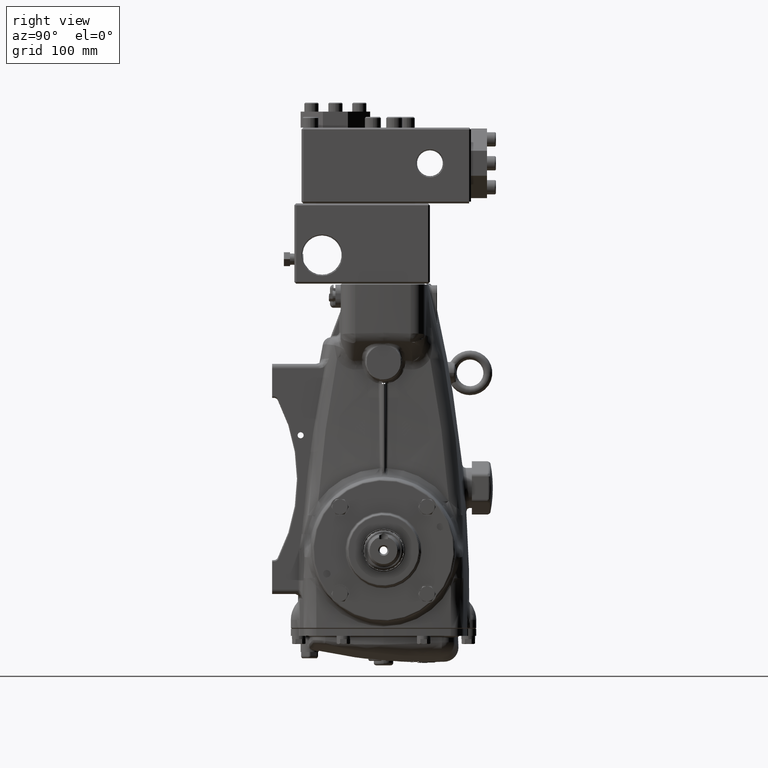
[diagram: clean part render]
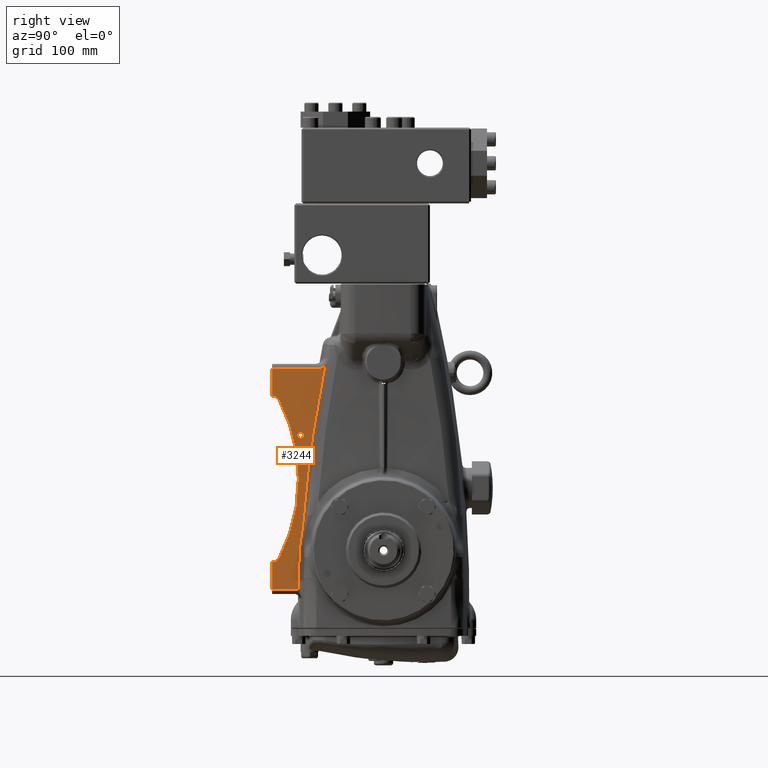
[diagram: same view with one face highlighted and labeled with its STEP entity id]
A machine part, right view. The second image highlights one B-rep face of the part: STEP entity #3244.
In plain terms, the highlighted planar face has unit normal (-1, 0, 0).
Its self-contained STEP definition (entity closure, byte-faithful):
#1017 = B_SPLINE_CURVE_WITH_KNOTS ( 'NONE', 3,
 ( #24092, #60508, #96879, #15087, #51533, #87942, #6143, #42595, #78983, #115362 ),
 .UNSPECIFIED., .F., .F.,
 ( 4, 2, 2, 2, 4 ),
 ( 0.002992782186349684202, 0.04500016623403916421, 0.08700755028172864336, 0.1290149343294180739, 0.1710223183771075184 ),
 .UNSPECIFIED. ) ;
#1071 = CARTESIAN_POINT ( 'NONE',  ( 3.503937007874016185, -4.921259842519685179, -0.5071693245324403465 ) ) ;
#1126 = CARTESIAN_POINT ( 'NONE',  ( 3.503937007874016185, -2.785278480736270268, 8.038609735109444543 ) ) ;
#1144 = CARTESIAN_POINT ( 'NONE',  ( 3.503937007874016185, -4.921259842519685179, -1.732283464566929387 ) ) ;
#1653 = CARTESIAN_POINT ( 'NONE',  ( 3.503937007874016185, -4.648289820371906522, -0.4052526747352560577 ) ) ;
#1884 = CARTESIAN_POINT ( 'NONE',  ( 3.503937007874016185, -3.661417322834644494, 5.078740157480314821 ) ) ;
#2562 = EDGE_CURVE ( 'NONE', #33775, #106460, #52365, .T. ) ;
#3244 = ADVANCED_FACE ( 'NONE', ( #14401, #50849 ), #87258, .F. ) ;
#5461 = CARTESIAN_POINT ( 'NONE',  ( 3.503937007874016185, 19685.03937007874265, -0.4330708661417321248 ) ) ;
#5695 = EDGE_CURVE ( 'NONE', #36508, #104891, #23075, .T. ) ;
#6095 = LINE ( 'NONE', #42549, #81838 ) ;
#6143 = CARTESIAN_POINT ( 'NONE',  ( 3.503937007874016185, -3.306522765691745303, 3.759119057958843158 ) ) ;
#6997 = ORIENTED_EDGE ( 'NONE', *, *, #48296, .F. ) ;
#7911 = VERTEX_POINT ( 'NONE', #9580 ) ;
#8292 = CARTESIAN_POINT ( 'NONE',  ( 3.503937007874016185, -4.693415663590920772, 6.744368773908521852 ) ) ;
#9580 = CARTESIAN_POINT ( 'NONE',  ( 3.503937007874016185, -4.921259842519685179, 6.806381922957635666 ) ) ;
#10040 = EDGE_CURVE ( 'NONE', #70863, #28166, #94494, .T. ) ;
#10589 = CARTESIAN_POINT ( 'NONE',  ( 3.503937007874016629, -4.718454748744495220, -0.4613905697819655760 ) ) ;
#11114 = DIRECTION ( 'NONE',  ( 0.0000000000000000000, 0.0000000000000000000, -1.000000000000000000 ) ) ;
#12508 = EDGE_CURVE ( 'NONE', #50626, #31288, #14722, .T. ) ;
#12710 = CARTESIAN_POINT ( 'NONE',  ( 3.503937007874016185, 19685.03937007874265, -1.732283464566929387 ) ) ;
#13094 = CARTESIAN_POINT ( 'NONE',  ( 3.503937007874016185, -3.747773536627886148, -0.5606018413933600009 ) ) ;
#13255 = CARTESIAN_POINT ( 'NONE',  ( 3.503937007874016185, -4.616205892322111204, -0.3546380428155870845 ) ) ;
#13728 = CARTESIAN_POINT ( 'NONE',  ( 3.503937007874016629, -3.722227576016405859, 0.08586763109629419466 ) ) ;
#14401 = FACE_BOUND ( 'NONE', #58795, .T. ) ;
#14722 = CIRCLE ( 'NONE', #81504, 0.1328740157480310657 ) ;
#14924 = VERTEX_POINT ( 'NONE', #74483 ) ;
#15087 = CARTESIAN_POINT ( 'NONE',  ( 3.503937007874017517, -2.998424493625548859, 5.942879939162322600 ) ) ;
#17023 = CARTESIAN_POINT ( 'NONE',  ( 3.503937007874016185, -2.883808963174094409, 8.031496062992124152 ) ) ;
#17252 = CARTESIAN_POINT ( 'NONE',  ( 3.503937007874016185, -4.630124390028430348, 6.680717779772191278 ) ) ;
#17432 = EDGE_CURVE ( 'NONE', #14924, #36508, #100230, .T. ) ;
#17500 = B_SPLINE_CURVE_WITH_KNOTS ( 'NONE', 3,
 ( #99043, #17252, #53691, #90086, #8292, #44725, #81142, #117530, #35797, #72185, #108556, #26819, #63228, #99630, #17842, #54280 ),
 .UNSPECIFIED., .F., .F.,
 ( 4, 2, 2, 2, 2, 2, 2, 4 ),
 ( 1.387778780781445676E-17, 0.002272437004862734328, 0.003408655507294066581, 0.004544874009725399268, 0.005681092512156730653, 0.006817311014588062906, 0.007953529517019395159, 0.009089748019450725677 ),
 .UNSPECIFIED. ) ;
#17685 = CARTESIAN_POINT ( 'NONE',  ( 3.503937007874016185, 19685.03937007874265, 8.031496062992124152 ) ) ;
#17842 = CARTESIAN_POINT ( 'NONE',  ( 3.503937007874016185, -4.906289116070731815, 6.805306214796285502 ) ) ;
#19570 = CARTESIAN_POINT ( 'NONE',  ( 3.503937007874016185, -4.773521109645815663, -0.4853415663753637421 ) ) ;
#19793 = ORIENTED_EDGE ( 'NONE', *, *, #54610, .F. ) ;
#20139 = VECTOR ( 'NONE', #49130, 39.37007874015748143 ) ;
#20697 = EDGE_LOOP ( 'NONE', ( #46278, #58767, #94320, #55325, #56971, #89150, #6997, #19793, #24437, #52885, #32890, #56306, #48232 ) ) ;
#21404 = DIRECTION ( 'NONE',  ( 0.0000000000000000000, 0.0000000000000000000, 1.000000000000000000 ) ) ;
#22265 = CARTESIAN_POINT ( 'NONE',  ( 3.503937007874016185, -3.588905748136939078, 1.007652621083721778 ) ) ;
#22351 = CIRCLE ( 'NONE', #89087, 7.618110236220474007 ) ;
#22721 = CARTESIAN_POINT ( 'NONE',  ( 3.503937007874016185, -3.690539410082489535, 0.3208889523179280778 ) ) ;
#23075 = B_SPLINE_CURVE_WITH_KNOTS ( 'NONE', 3,
 ( #77030, #113407, #31684, #68083, #104470, #22721, #59142, #95521, #13728, #50163 ),
 .UNSPECIFIED., .F., .F.,
 ( 4, 2, 2, 2, 4 ),
 ( 0.0000000000000000000, 0.004517314599524206026, 0.009034629199048412052, 0.01355194379857261808, 0.01806925839809682410 ),
 .UNSPECIFIED. ) ;
#23879 = CARTESIAN_POINT ( 'NONE',  ( 3.503937007874016185, -4.921259842519685179, -0.4330708661417321248 ) ) ;
#24092 = CARTESIAN_POINT ( 'NONE',  ( 3.503937007874016185, -2.602107652601760357, 8.112767743021466416 ) ) ;
#24437 = ORIENTED_EDGE ( 'NONE', *, *, #64785, .F. ) ;
#24651 = B_SPLINE_CURVE_WITH_KNOTS ( 'NONE', 3,
 ( #94890, #13094, #49526, #85952 ),
 .UNSPECIFIED., .F., .F.,
 ( 4, 4 ),
 ( 0.0000000000000000000, 0.04475000068568665140 ),
 .UNSPECIFIED. ) ;
#26819 = CARTESIAN_POINT ( 'NONE',  ( 3.503937007874015741, -4.846505542951862644, 6.799606973007217725 ) ) ;
#26935 = ORIENTED_EDGE ( 'NONE', *, *, #28271, .T. ) ;
#27955 = CARTESIAN_POINT ( 'NONE',  ( 3.503937007874016185, -3.724581833894700988, 0.02629046851337778212 ) ) ;
#28166 = VERTEX_POINT ( 'NONE', #1144 ) ;
#28271 = EDGE_CURVE ( 'NONE', #31288, #50626, #86825, .T. ) ;
#28530 = CARTESIAN_POINT ( 'NONE',  ( 3.503937007874016629, -4.846505542951875078, -0.5003943745820219613 ) ) ;
#28589 = CARTESIAN_POINT ( 'NONE',  ( 3.503937007874017517, -2.623297997128170245, 8.099642149567246818 ) ) ;
#29424 = CARTESIAN_POINT ( 'NONE',  ( 3.503937007874016185, -3.798799865951477450, -1.732283464566927389 ) ) ;
#30731 = AXIS2_PLACEMENT_3D ( 'NONE', #5461, #41903, #78292 ) ;
#31095 = B_SPLINE_CURVE_WITH_KNOTS ( 'NONE', 3,
 ( #74794, #111179, #29424, #65845 ),
 .UNSPECIFIED., .F., .F.,
 ( 4, 4 ),
 ( 1.112389315513592667E-16, 0.001178698509222294048 ),
 .UNSPECIFIED. ) ;
#31224 = CARTESIAN_POINT ( 'NONE',  ( 3.503937007874016185, -3.527566181172348436, 1.563103187305856290 ) ) ;
#31288 = VERTEX_POINT ( 'NONE', #75768 ) ;
#31684 = CARTESIAN_POINT ( 'NONE',  ( 3.503937007874017517, -3.636183932993420687, 0.6124891294314417367 ) ) ;
#32890 = ORIENTED_EDGE ( 'NONE', *, *, #38235, .F. ) ;
#33775 = VERTEX_POINT ( 'NONE', #99026 ) ;
#35414 = AXIS2_PLACEMENT_3D ( 'NONE', #66778, #103166, #21404 ) ;
#35797 = CARTESIAN_POINT ( 'NONE',  ( 3.503937007874016629, -4.773521109645794347, 6.784554164800557174 ) ) ;
#36508 = VERTEX_POINT ( 'NONE', #90176 ) ;
#37522 = CARTESIAN_POINT ( 'NONE',  ( 3.503937007874016185, -4.906289116070752243, -0.5060936163710919589 ) ) ;
#37588 = CARTESIAN_POINT ( 'NONE',  ( 3.503937007874016629, -2.714031542117705698, 8.059236136507291093 ) ) ;
#38101 = CARTESIAN_POINT ( 'NONE',  ( 3.503937007874016629, -4.630124390028468540, -0.3815051813470399789 ) ) ;
#38235 = EDGE_CURVE ( 'NONE', #28166, #33775, #6095, .T. ) ;
#38327 = DIRECTION ( 'NONE',  ( -1.000000000000000000, -0.0000000000000000000, -0.0000000000000000000 ) ) ;
#41903 = DIRECTION ( 'NONE',  ( -1.000000000000000000, 0.0000000000000000000, 0.0000000000000000000 ) ) ;
#42549 = CARTESIAN_POINT ( 'NONE',  ( 3.503937007874016185, -4.921259842519685179, -0.4330708661417321248 ) ) ;
#42595 = CARTESIAN_POINT ( 'NONE',  ( 3.503937007874016185, -3.428972750327167862, 2.662269397423764339 ) ) ;
#44295 = VERTEX_POINT ( 'NONE', #63920 ) ;
#44725 = CARTESIAN_POINT ( 'NONE',  ( 3.503937007874015297, -4.718454748744501437, 6.760603168207090619 ) ) ;
#46278 = ORIENTED_EDGE ( 'NONE', *, *, #47250, .F. ) ;
#46495 = CARTESIAN_POINT ( 'NONE',  ( 3.503937007874016185, -2.883808963174094409, 8.031496062992124152 ) ) ;
#47028 = CARTESIAN_POINT ( 'NONE',  ( 3.503937007874016629, -4.693415663590924325, -0.4451561754833937012 ) ) ;
#47250 = EDGE_CURVE ( 'NONE', #104891, #44295, #24651, .T. ) ;
#48232 = ORIENTED_EDGE ( 'NONE', *, *, #114563, .F. ) ;
#48296 = EDGE_CURVE ( 'NONE', #7911, #105479, #105619, .T. ) ;
#49130 = DIRECTION ( 'NONE',  ( 0.0000000000000000000, -1.000000000000000000, 0.0000000000000000000 ) ) ;
#49526 = CARTESIAN_POINT ( 'NONE',  ( 3.503937007874017961, -3.762235296337156143, -1.147694889182239830 ) ) ;
#50163 = CARTESIAN_POINT ( 'NONE',  ( 3.503937007874016185, -3.724581833894700988, 0.02629046851337778212 ) ) ;
#50626 = VERTEX_POINT ( 'NONE', #117874 ) ;
#50849 = FACE_OUTER_BOUND ( 'NONE', #20697, .T. ) ;
#51533 = CARTESIAN_POINT ( 'NONE',  ( 3.503937007874016629, -3.083357760850589102, 5.398183425227456311 ) ) ;
#51574 = VERTEX_POINT ( 'NONE', #17023 ) ;
#52365 = B_SPLINE_CURVE_WITH_KNOTS ( 'NONE', 3,
 ( #1071, #37522, #73901, #110276, #28530, #64953, #101347, #19570, #56003, #92381, #10589, #47028, #83449, #1653, #38101, #74480 ),
 .UNSPECIFIED., .F., .F.,
 ( 4, 2, 2, 2, 2, 2, 2, 4 ),
 ( 4.458779292305356437E-16, 0.001143502835804588533, 0.002287005671608731243, 0.003430508507412873952, 0.004574011343217016662, 0.005717514179021158938, 0.006861017014825302081, 0.009148022686433587500 ),
 .UNSPECIFIED. ) ;
#52885 = ORIENTED_EDGE ( 'NONE', *, *, #2562, .F. ) ;
#53691 = CARTESIAN_POINT ( 'NONE',  ( 3.503937007874016185, -4.648289820371868331, 6.704465273160414185 ) ) ;
#54129 = DIRECTION ( 'NONE',  ( -0.0000000000000000000, 1.000000000000000000, -0.0000000000000000000 ) ) ;
#54280 = CARTESIAN_POINT ( 'NONE',  ( 3.503937007874016185, -4.921259842519685179, 6.806381922957635666 ) ) ;
#54610 = EDGE_CURVE ( 'NONE', #87907, #7911, #17500, .T. ) ;
#55200 = VECTOR ( 'NONE', #54129, 39.37007874015748143 ) ;
#55325 = ORIENTED_EDGE ( 'NONE', *, *, #108217, .F. ) ;
#56003 = CARTESIAN_POINT ( 'NONE',  ( 3.503937007874016629, -4.759386448638603717, -0.4805223026392264063 ) ) ;
#56174 = CARTESIAN_POINT ( 'NONE',  ( 3.503937007874016185, -4.921259842519685179, 8.031496062992124152 ) ) ;
#56306 = ORIENTED_EDGE ( 'NONE', *, *, #10040, .F. ) ;
#56541 = CARTESIAN_POINT ( 'NONE',  ( 3.503937007874016185, -11.38051481212837679, 3.149606299212599048 ) ) ;
#56971 = ORIENTED_EDGE ( 'NONE', *, *, #69356, .F. ) ;
#58688 = CARTESIAN_POINT ( 'NONE',  ( 3.503937007874016629, -3.605939949937524869, 0.8689799660905869194 ) ) ;
#58767 = ORIENTED_EDGE ( 'NONE', *, *, #5695, .F. ) ;
#58795 = EDGE_LOOP ( 'NONE', ( #88905, #26935 ) ) ;
#58912 = CARTESIAN_POINT ( 'NONE',  ( 3.503937007874016185, -3.814294700447625974, -1.732283464566929387 ) ) ;
#59142 = CARTESIAN_POINT ( 'NONE',  ( 3.503937007874016629, -3.700687287697055350, 0.2624621663861315124 ) ) ;
#60303 = DIRECTION ( 'NONE',  ( 0.0000000000000000000, 0.0000000000000000000, 1.000000000000000000 ) ) ;
#60508 = CARTESIAN_POINT ( 'NONE',  ( 3.503937007874016185, -2.711457084039380128, 7.571910866688702946 ) ) ;
#63228 = CARTESIAN_POINT ( 'NONE',  ( 3.503937007874016629, -4.861449618656907390, 6.801280704679270706 ) ) ;
#63920 = CARTESIAN_POINT ( 'NONE',  ( 3.503937007874017961, -3.767968163267040982, -1.734988650703749968 ) ) ;
#64785 = EDGE_CURVE ( 'NONE', #106460, #87907, #22351, .T. ) ;
#64953 = CARTESIAN_POINT ( 'NONE',  ( 3.503937007874016185, -4.816925024654156395, -0.4958865953574389529 ) ) ;
#65013 = CARTESIAN_POINT ( 'NONE',  ( 3.503937007874016185, -2.602107652601760357, 8.112767743021466416 ) ) ;
#65845 = CARTESIAN_POINT ( 'NONE',  ( 3.503937007874016185, -3.814294700447625974, -1.732283464566929387 ) ) ;
#66778 = CARTESIAN_POINT ( 'NONE',  ( 3.503937007874016185, -3.661417322834644494, 5.078740157480314821 ) ) ;
#67627 = CARTESIAN_POINT ( 'NONE',  ( 3.503937007874016185, -3.539042637811502967, 1.423809164309841169 ) ) ;
#68083 = CARTESIAN_POINT ( 'NONE',  ( 3.503937007874016185, -3.657110209450497695, 0.4957286256059629803 ) ) ;
#69356 = EDGE_CURVE ( 'NONE', #51574, #96813, #107504, .T. ) ;
#70863 = VERTEX_POINT ( 'NONE', #58912 ) ;
#72185 = CARTESIAN_POINT ( 'NONE',  ( 3.503937007874017517, -4.802289649237365232, 6.792239239733524947 ) ) ;
#73901 = CARTESIAN_POINT ( 'NONE',  ( 3.503937007874017517, -4.891327400050264451, -0.5049189318019252637 ) ) ;
#73958 = CARTESIAN_POINT ( 'NONE',  ( 3.503937007874016629, -2.690511795128365691, 8.067848006717895259 ) ) ;
#74034 = CARTESIAN_POINT ( 'NONE',  ( 3.503937007874016185, -4.616205892322081006, 6.653850641240728336 ) ) ;
#74480 = CARTESIAN_POINT ( 'NONE',  ( 3.503937007874016185, -4.616205892322111204, -0.3546380428155870845 ) ) ;
#74483 = CARTESIAN_POINT ( 'NONE',  ( 3.503937007874016185, -3.527566181172348436, 1.563103187305856290 ) ) ;
#74709 = DIRECTION ( 'NONE',  ( 0.0000000000000000000, 0.0000000000000000000, 1.000000000000000000 ) ) ;
#74794 = CARTESIAN_POINT ( 'NONE',  ( 3.503937007874017961, -3.767968163267040982, -1.734988650703749968 ) ) ;
#75768 = CARTESIAN_POINT ( 'NONE',  ( 3.503937007874016185, -3.661417322834644494, 4.945866141732284227 ) ) ;
#77030 = CARTESIAN_POINT ( 'NONE',  ( 3.503937007874016185, -3.620702961579017831, 0.7300533870954822868 ) ) ;
#78292 = DIRECTION ( 'NONE',  ( 0.0000000000000000000, 0.0000000000000000000, -1.000000000000000000 ) ) ;
#78939 = DIRECTION ( 'NONE',  ( 0.0000000000000000000, 0.0000000000000000000, 1.000000000000000000 ) ) ;
#78983 = CARTESIAN_POINT ( 'NONE',  ( 3.503937007874016185, -3.482254139389418857, 2.113072292627703241 ) ) ;
#79060 = EDGE_CURVE ( 'NONE', #105479, #51574, #99478, .T. ) ;
#80444 = VECTOR ( 'NONE', #60303, 39.37007874015748143 ) ;
#81142 = CARTESIAN_POINT ( 'NONE',  ( 3.503937007874016629, -4.731727712772016758, 6.767707132676672899 ) ) ;
#81504 = AXIS2_PLACEMENT_3D ( 'NONE', #1884, #38327, #74709 ) ;
#81838 = VECTOR ( 'NONE', #78939, 39.37007874015748143 ) ;
#82917 = CARTESIAN_POINT ( 'NONE',  ( 3.503937007874016629, -2.833927097246108584, 8.031496062992127705 ) ) ;
#83449 = CARTESIAN_POINT ( 'NONE',  ( 3.503937007874016629, -4.681586027986985421, -0.4360032511572066172 ) ) ;
#85355 = CARTESIAN_POINT ( 'NONE',  ( 3.503937007874016185, -2.602107652601760357, 8.112767743021466416 ) ) ;
#85952 = CARTESIAN_POINT ( 'NONE',  ( 3.503937007874017961, -3.767968163267040982, -1.734988650703749968 ) ) ;
#86825 = CIRCLE ( 'NONE', #35414, 0.1328740157480310657 ) ;
#87258 = PLANE ( 'NONE',  #30731 ) ;
#87907 = VERTEX_POINT ( 'NONE', #74034 ) ;
#87942 = CARTESIAN_POINT ( 'NONE',  ( 3.503937007874016185, -3.237408030805594361, 4.306303162944032259 ) ) ;
#88905 = ORIENTED_EDGE ( 'NONE', *, *, #12508, .T. ) ;
#89087 = AXIS2_PLACEMENT_3D ( 'NONE', #56541, #92920, #11114 ) ;
#89150 = ORIENTED_EDGE ( 'NONE', *, *, #79060, .F. ) ;
#90086 = CARTESIAN_POINT ( 'NONE',  ( 3.503937007874016629, -4.681586027986947229, 6.735215849582378844 ) ) ;
#90176 = CARTESIAN_POINT ( 'NONE',  ( 3.503937007874016185, -3.620702961579017831, 0.7300533870954822868 ) ) ;
#92381 = CARTESIAN_POINT ( 'NONE',  ( 3.503937007874016185, -4.731727712772045180, -0.4684945342514902911 ) ) ;
#92920 = DIRECTION ( 'NONE',  ( 1.000000000000000000, -0.0000000000000000000, -0.0000000000000000000 ) ) ;
#94320 = ORIENTED_EDGE ( 'NONE', *, *, #17432, .F. ) ;
#94494 = LINE ( 'NONE', #12710, #20139 ) ;
#94890 = CARTESIAN_POINT ( 'NONE',  ( 3.503937007874016185, -3.724581833894700988, 0.02629046851337778212 ) ) ;
#95058 = CARTESIAN_POINT ( 'NONE',  ( 3.503937007874016185, -3.620702961579017831, 0.7300533870954822868 ) ) ;
#95521 = CARTESIAN_POINT ( 'NONE',  ( 3.503937007874016185, -3.716522745441340092, 0.1449502326499750304 ) ) ;
#96813 = VERTEX_POINT ( 'NONE', #85355 ) ;
#96879 = CARTESIAN_POINT ( 'NONE',  ( 3.503937007874016629, -2.812472069077942116, 7.029743331830385245 ) ) ;
#99026 = CARTESIAN_POINT ( 'NONE',  ( 3.503937007874016185, -4.921259842519685179, -0.5071693245324403465 ) ) ;
#99043 = CARTESIAN_POINT ( 'NONE',  ( 3.503937007874016185, -4.616205892322081006, 6.653850641240728336 ) ) ;
#99478 = LINE ( 'NONE', #17685, #55200 ) ;
#99630 = CARTESIAN_POINT ( 'NONE',  ( 3.503937007874015741, -4.891327400050258234, 6.804131530227121694 ) ) ;
#100230 = B_SPLINE_CURVE_WITH_KNOTS ( 'NONE', 3,
 ( #31224, #67627, #104021, #22265, #58688, #95058 ),
 .UNSPECIFIED., .F., .F.,
 ( 4, 2, 4 ),
 ( 0.0000000000000000000, 0.01064564899915730091, 0.02129129799831460182 ),
 .UNSPECIFIED. ) ;
#101347 = CARTESIAN_POINT ( 'NONE',  ( 3.503937007874016629, -4.802289649237382996, -0.4930266413083278509 ) ) ;
#103166 = DIRECTION ( 'NONE',  ( -1.000000000000000000, -0.0000000000000000000, -0.0000000000000000000 ) ) ;
#104021 = CARTESIAN_POINT ( 'NONE',  ( 3.503937007874017517, -3.555432535987748999, 1.285064474769479270 ) ) ;
#104470 = CARTESIAN_POINT ( 'NONE',  ( 3.503937007874016629, -3.668745550523472954, 0.4375213966053295156 ) ) ;
#104891 = VERTEX_POINT ( 'NONE', #27955 ) ;
#105479 = VERTEX_POINT ( 'NONE', #56174 ) ;
#105619 = LINE ( 'NONE', #23879, #80444 ) ;
#106460 = VERTEX_POINT ( 'NONE', #13255 ) ;
#107504 = B_SPLINE_CURVE_WITH_KNOTS ( 'NONE', 3,
 ( #46495, #82917, #1126, #37588, #73958, #110334, #28589, #65013 ),
 .UNSPECIFIED., .F., .F.,
 ( 4, 2, 2, 4 ),
 ( 0.0000000000000000000, 0.003745135131311566352, 0.005617702696967380969, 0.007490270262623196021 ),
 .UNSPECIFIED. ) ;
#108217 = EDGE_CURVE ( 'NONE', #96813, #14924, #1017, .T. ) ;
#108556 = CARTESIAN_POINT ( 'NONE',  ( 3.503937007874016629, -4.816925024654141296, 6.795099193782635716 ) ) ;
#110276 = CARTESIAN_POINT ( 'NONE',  ( 3.503937007874016185, -4.861449618656916272, -0.5020681062540734985 ) ) ;
#110334 = CARTESIAN_POINT ( 'NONE',  ( 3.503937007874016185, -2.645218235793530770, 8.088035875519713258 ) ) ;
#111179 = CARTESIAN_POINT ( 'NONE',  ( 3.503937007874016185, -3.783357683791080728, -1.733185140188020057 ) ) ;
#113407 = CARTESIAN_POINT ( 'NONE',  ( 3.503937007874016185, -3.626972507503635423, 0.6710541403082179723 ) ) ;
#114563 = EDGE_CURVE ( 'NONE', #44295, #70863, #31095, .T. ) ;
#115362 = CARTESIAN_POINT ( 'NONE',  ( 3.503937007874016185, -3.527566181172348436, 1.563103187305856290 ) ) ;
#117530 = CARTESIAN_POINT ( 'NONE',  ( 3.503937007874017517, -4.759386448638580625, 6.779734901064412789 ) ) ;
#117874 = CARTESIAN_POINT ( 'NONE',  ( 3.503937007874016185, -3.661417322834644494, 5.211614173228346303 ) ) ;